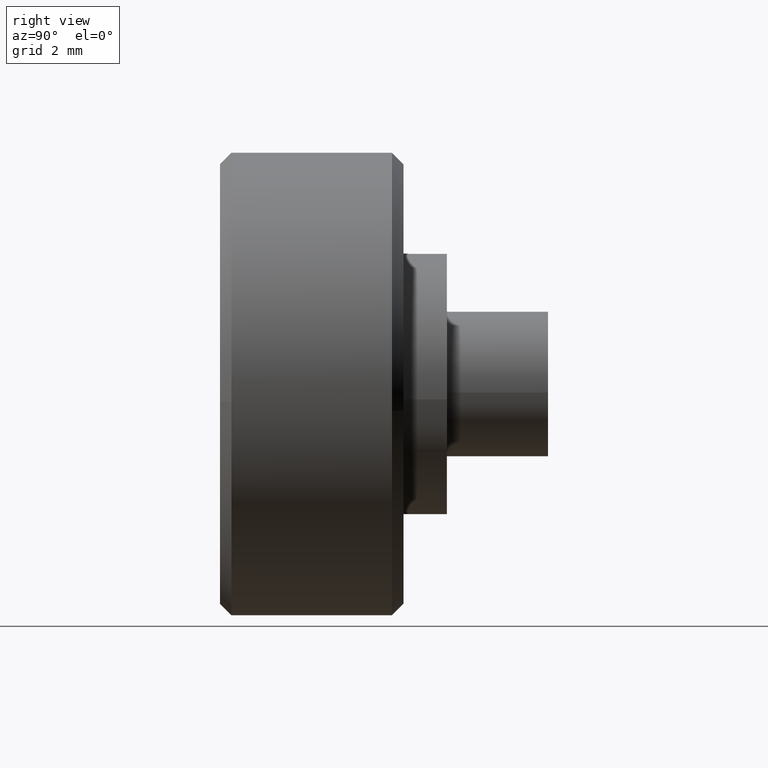
[diagram: clean part render]
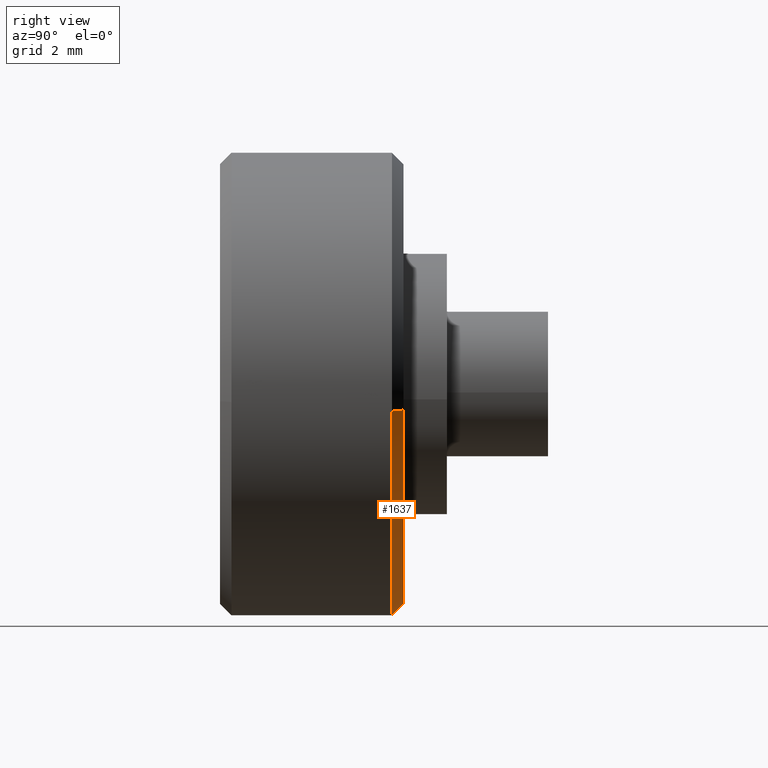
[diagram: same view with one face highlighted and labeled with its STEP entity id]
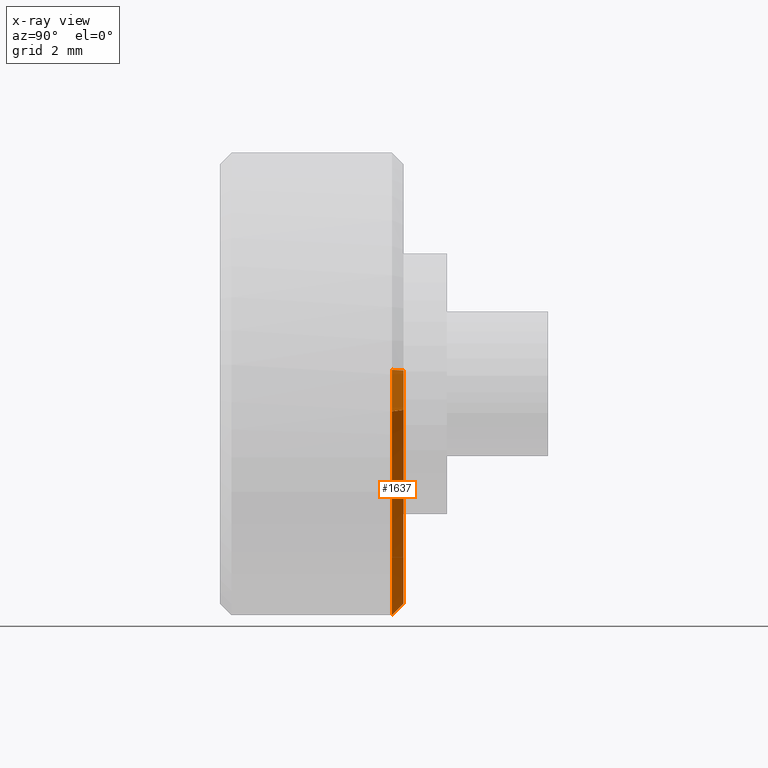
[diagram: x-ray of the same camera — body ghosted, the highlighted face saturated]
A machine part, right view. The second image highlights one B-rep face of the part: STEP entity #1637.
The next image is the same camera in x-ray: the body ghosted, the highlighted face saturated — about 17% of this face is hidden behind the body in this view.
In plain terms, the highlighted face is a freeform B-spline surface patch.
Its self-contained STEP definition (entity closure, byte-faithful):
#1403=CARTESIAN_POINT('',(-7.985078387375440,5.949999999998196,0.488388316285977));
#1404=VERTEX_POINT('',#1403);
#1456=CARTESIAN_POINT('',(7.944076210909341,5.949999999999953,-0.944273877254476));
#1457=VERTEX_POINT('',#1456);
#1478=CARTESIAN_POINT('',(0.0,5.950000000000000,-8.0));
#1479=VERTEX_POINT('',#1478);
#1480=CARTESIAN_POINT('',(-7.985078387375441,5.949999999998197,0.488388316285977));
#1481=CARTESIAN_POINT('',(-8.0,5.950000000000000,0.244422106402877));
#1482=CARTESIAN_POINT('',(-8.0,5.950000000000000,-1.467165E-016));
#1483=CARTESIAN_POINT('',(-8.0,5.950000000000000,-8.0));
#1484=CARTESIAN_POINT('',(0.0,5.950000000000000,-8.0));
#1492=(BOUNDED_CURVE()B_SPLINE_CURVE(2,(#1480,#1481,#1482,#1483,#1484),.UNSPECIFIED.,.F.,.U.)B_SPLINE_CURVE_WITH_KNOTS((3,2,3),(0.739332962241358,0.750000000000000,1.0),.UNSPECIFIED.)CURVE()GEOMETRIC_REPRESENTATION_ITEM()RATIONAL_B_SPLINE_CURVE((0.976072041671893,0.987502787902667,1.0,0.707106781186548,1.0))REPRESENTATION_ITEM(''));
#1493=EDGE_CURVE('',#1404,#1479,#1492,.T.);
#1495=CARTESIAN_POINT('',(0.0,5.950000000000000,-8.0));
#1496=CARTESIAN_POINT('',(7.105396207610216,5.950000000000000,-8.0));
#1497=CARTESIAN_POINT('',(7.944076210909342,5.949999999999953,-0.944273877254476));
#1505=(BOUNDED_CURVE()B_SPLINE_CURVE(2,(#1495,#1496,#1497),.UNSPECIFIED.,.F.,.U.)B_SPLINE_CURVE_WITH_KNOTS((3,3),(0.0,0.229562473515627),.UNSPECIFIED.)CURVE()GEOMETRIC_REPRESENTATION_ITEM()RATIONAL_B_SPLINE_CURVE((1.0,0.731050832852920,0.956026754187852))REPRESENTATION_ITEM(''));
#1506=EDGE_CURVE('',#1479,#1457,#1505,.T.);
#1534=CARTESIAN_POINT('',(7.546872400363963,6.349999999998500,-0.897060183403245));
#1535=VERTEX_POINT('',#1534);
#1536=CARTESIAN_POINT('',(7.546872400363963,6.349999999998500,-0.897060183403245));
#1537=CARTESIAN_POINT('',(7.944076210909341,5.949999999999953,-0.944273877254476));
#1538=QUASI_UNIFORM_CURVE('',1,(#1536,#1537),.UNSPECIFIED.,.F.,.U.);
#1539=EDGE_CURVE('',#1535,#1457,#1538,.T.);
#1558=CARTESIAN_POINT('',(-7.585824468006441,6.349999999999526,0.463968900468512));
#1559=VERTEX_POINT('',#1558);
#1573=CARTESIAN_POINT('',(-7.585824468006441,6.349999999999526,0.463968900468512));
#1574=CARTESIAN_POINT('',(-7.985078387375440,5.949999999998196,0.488388316285977));
#1575=QUASI_UNIFORM_CURVE('',1,(#1573,#1574),.UNSPECIFIED.,.F.,.U.);
#1576=EDGE_CURVE('',#1559,#1404,#1575,.T.);
#1583=CARTESIAN_POINT('',(-7.575843120021967,6.360000000000000,0.463358415069564));
#1584=CARTESIAN_POINT('',(-8.039201535091531,6.360000000000000,-7.112484704952403));
#1585=CARTESIAN_POINT('',(-0.463358415069564,6.360000000000000,-7.575843120021967));
#1586=CARTESIAN_POINT('',(6.690915095471810,6.360000000000000,-8.013417233199879));
#1587=CARTESIAN_POINT('',(7.536942305100226,6.360000000000002,-0.895879841044797));
#1588=CARTESIAN_POINT('',(-7.995309269058780,5.939749999999999,0.489014063809089));
#1589=CARTESIAN_POINT('',(-8.484323332867868,5.939749999999998,-7.506295205249690));
#1590=CARTESIAN_POINT('',(-0.489014063809090,5.939749999999999,-7.995309269058780));
#1591=CARTESIAN_POINT('',(7.061383747497132,5.939749999999998,-8.457111382376752));
#1592=CARTESIAN_POINT('',(7.954254558554580,5.939750000000000,-0.945483728159302));
#1600=(BOUNDED_SURFACE()B_SPLINE_SURFACE(2,1,((#1583,#1588),(#1584,#1589),(#1585,#1590),(#1586,#1591),(#1587,#1592)),.UNSPECIFIED.,.F.,.F.,.U.)B_SPLINE_SURFACE_WITH_KNOTS((3,2,3),(2,2),(0.0,13.271816751996370,26.012760833912889),(0.0,1.0),.UNSPECIFIED.)GEOMETRIC_REPRESENTATION_ITEM()RATIONAL_B_SPLINE_SURFACE(((1.0,1.0),(0.707106781186548,0.707106781186548),(1.0,1.0),(0.718822509939086,0.718822509939086),(0.977505800795127,0.977505800795127)))REPRESENTATION_ITEM('')SURFACE());
#1601=ORIENTED_EDGE('',*,*,#1506,.F.);
#1602=ORIENTED_EDGE('',*,*,#1493,.F.);
#1603=ORIENTED_EDGE('',*,*,#1576,.F.);
#1604=CARTESIAN_POINT('',(0.0,6.350000000000000,-7.600000000000000));
#1605=VERTEX_POINT('',#1604);
#1606=CARTESIAN_POINT('',(-7.585824468006441,6.349999999999526,0.463968900468512));
#1607=CARTESIAN_POINT('',(-7.600000000000000,6.350000000000001,0.232201001072855));
#1608=CARTESIAN_POINT('',(-7.600000000000000,6.350000000000000,-1.467165E-016));
#1609=CARTESIAN_POINT('',(-7.600000000000000,6.350000000000000,-7.600000000000000));
#1610=CARTESIAN_POINT('',(0.0,6.350000000000000,-7.600000000000000));
#1618=(BOUNDED_CURVE()B_SPLINE_CURVE(2,(#1606,#1607,#1608,#1609,#1610),.UNSPECIFIED.,.F.,.U.)B_SPLINE_CURVE_WITH_KNOTS((3,2,3),(0.739332962241806,0.750000000000000,1.0),.UNSPECIFIED.)CURVE()GEOMETRIC_REPRESENTATION_ITEM()RATIONAL_B_SPLINE_CURVE((0.976072041672854,0.987502787903192,1.0,0.707106781186547,1.0))REPRESENTATION_ITEM(''));
#1619=EDGE_CURVE('',#1559,#1605,#1618,.T.);
#1620=ORIENTED_EDGE('',*,*,#1619,.T.);
#1621=CARTESIAN_POINT('',(0.0,6.350000000000000,-7.600000000000000));
#1622=CARTESIAN_POINT('',(6.750126397209313,6.350000000000001,-7.600000000000000));
#1623=CARTESIAN_POINT('',(7.546872400363964,6.349999999998500,-0.897060183403245));
#1631=(BOUNDED_CURVE()B_SPLINE_CURVE(2,(#1621,#1622,#1623),.UNSPECIFIED.,.F.,.U.)B_SPLINE_CURVE_WITH_KNOTS((3,3),(0.0,0.229562473515120),.UNSPECIFIED.)CURVE()GEOMETRIC_REPRESENTATION_ITEM()RATIONAL_B_SPLINE_CURVE((1.0,0.731050832853514,0.956026754186859))REPRESENTATION_ITEM(''));
#1632=EDGE_CURVE('',#1605,#1535,#1631,.T.);
#1633=ORIENTED_EDGE('',*,*,#1632,.T.);
#1634=ORIENTED_EDGE('',*,*,#1539,.T.);
#1635=EDGE_LOOP('',(#1601,#1602,#1603,#1620,#1633,#1634));
#1636=FACE_OUTER_BOUND('',#1635,.T.);
#1637=ADVANCED_FACE('',(#1636),#1600,.T.);